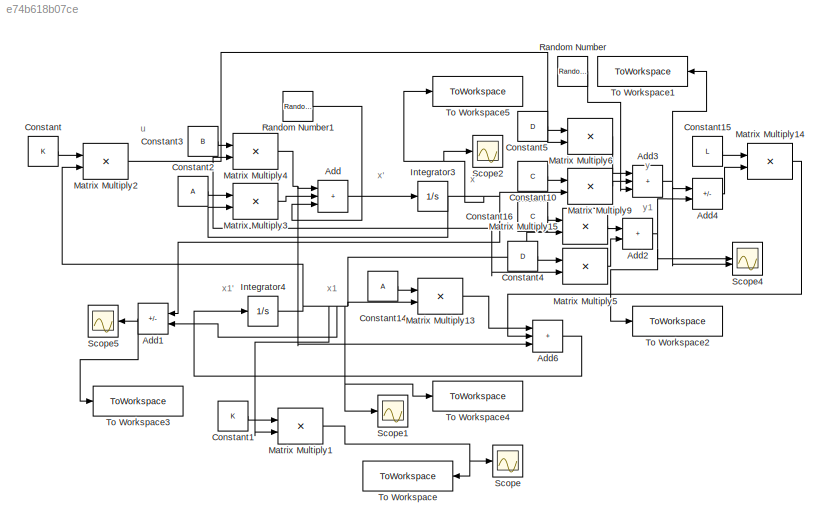
MODEL slx_e74b618b07ce
KIND model
CONFIG AbsTol = auto
CONFIG EnableMultiTasking = off
CONFIG FixedStep = 0.001
CONFIG MaxStep = auto
CONFIG MinStep = auto
CONFIG RelTol = 1e-3
CONFIG SampleTimeConstraint = Unconstrained
CONFIG SolverName = FixedStepAuto
CONFIG StartTime = 0.0
CONFIG StopTime = 10.0
BLOCK [Sum] Add
  IconShape = rectangular
  Inputs = +++
BLOCK [Sum] Add1
  IconShape = rectangular
  Inputs = +-
  NameLocation = top
BLOCK [Sum] Add2
  IconShape = rectangular
BLOCK [Sum] Add3
  IconShape = rectangular
  Inputs = +++
BLOCK [Sum] Add4
  IconShape = rectangular
  Inputs = -+
BLOCK [Sum] Add6
  IconShape = rectangular
  Inputs = +++
BLOCK [Constant] Constant
  Value = K
  VectorParams1D = off
BLOCK [Constant] Constant1
  Value = K
  VectorParams1D = off
BLOCK [Constant] Constant10
  Value = C
  VectorParams1D = off
BLOCK [Constant] Constant14
  Value = A
  VectorParams1D = off
BLOCK [Constant] Constant15
  Value = L
  VectorParams1D = off
BLOCK [Constant] Constant16
  Value = C
  VectorParams1D = off
BLOCK [Constant] Constant2
  Value = A
  VectorParams1D = off
BLOCK [Constant] Constant3
  Value = B
  VectorParams1D = off
BLOCK [Constant] Constant4
  Value = D
  VectorParams1D = off
BLOCK [Constant] Constant5
  Value = D
  VectorParams1D = off
BLOCK [Integrator] Integrator3
  InitialCondition = x0
BLOCK [Integrator] Integrator4
  InitialCondition = x1
BLOCK [Product] Matrix Multiply1
  Multiplication = Matrix(*)
BLOCK [Product] Matrix Multiply13
  Multiplication = Matrix(*)
BLOCK [Product] Matrix Multiply14
  Multiplication = Matrix(*)
BLOCK [Product] Matrix Multiply15
  Multiplication = Matrix(*)
BLOCK [Product] Matrix Multiply2
  Multiplication = Matrix(*)
BLOCK [Product] Matrix Multiply3
  Multiplication = Matrix(*)
BLOCK [Product] Matrix Multiply4
  Multiplication = Matrix(*)
BLOCK [Product] Matrix Multiply5
  Multiplication = Matrix(*)
BLOCK [Product] Matrix Multiply6
  Multiplication = Matrix(*)
BLOCK [Product] Matrix Multiply9
  Multiplication = Matrix(*)
BLOCK [RandomNumber] Random Number
  Mean = xi
  SampleTime = 0.1
BLOCK [RandomNumber] Random Number1
  Mean = fi
  SampleTime = 0.1
BLOCK [Scope] Scope
  Floating = off
  NumInputPorts = 1
  ScopeSpecificationString = Simulink.scopes.TimeScopeBlockCfg('CurrentConfiguration', extmgr.ConfigurationSet(extmgr.Configuration('Core','General UI',true),extmgr.Configuration('Core','Source UI',true),extmgr.Configuration('Sources','WiredSimulink',true,'DataLoggingVariableName','ScopeData1'),extmgr.Configuration('Visuals','Time Domain',true),extmgr.Configuration('Tools','Plot Navigation',true),extmgr.Configuration('Tools',...<+40ch>
BLOCK [Scope] Scope1
  Floating = off
  NumInputPorts = 1
  ScopeSpecificationString = Simulink.scopes.TimeScopeBlockCfg('CurrentConfiguration', extmgr.ConfigurationSet(extmgr.Configuration('Core','General UI',true),extmgr.Configuration('Core','Source UI',true),extmgr.Configuration('Sources','WiredSimulink',true,'DataLoggingVariableName','ScopeData2'),extmgr.Configuration('Visuals','Time Domain',true),extmgr.Configuration('Tools','Plot Navigation',true),extmgr.Configuration('Tools',...<+40ch>
BLOCK [Scope] Scope2
  Floating = off
  NumInputPorts = 1
  ScopeSpecificationString = Simulink.scopes.TimeScopeBlockCfg('CurrentConfiguration', extmgr.ConfigurationSet(extmgr.Configuration('Core','General UI',true),extmgr.Configuration('Core','Source UI',true),extmgr.Configuration('Sources','WiredSimulink',true,'DataLoggingVariableName','ScopeData3'),extmgr.Configuration('Visuals','Time Domain',true),extmgr.Configuration('Tools','Plot Navigation',true),extmgr.Configuration('Tools',...<+40ch>
BLOCK [Scope] Scope4
  Floating = off
  NumInputPorts = 2
  ScopeSpecificationString = Simulink.scopes.TimeScopeBlockCfg('CurrentConfiguration', extmgr.ConfigurationSet(extmgr.Configuration('Core','General UI',true),extmgr.Configuration('Core','Source UI',true),extmgr.Configuration('Sources','WiredSimulink',true,'DataLoggingVariableName','ScopeData5'),extmgr.Configuration('Visuals','Time Domain',true,'SerializedDisplays',{struct('MinYLimReal','-54.05485','MaxYLimReal','46.49361','YL...<+1398ch>
BLOCK [Scope] Scope5
  Floating = off
  NameLocation = top
  NumInputPorts = 1
  ScopeSpecificationString = Simulink.scopes.TimeScopeBlockCfg('CurrentConfiguration', extmgr.ConfigurationSet(extmgr.Configuration('Core','General UI',true),extmgr.Configuration('Core','Source UI',true),extmgr.Configuration('Sources','WiredSimulink',true),extmgr.Configuration('Visuals','Time Domain',true,'SerializedDisplays',{struct('MinYLimReal','-7.41862','MaxYLimReal','3.41958','YLabelReal','','MinYLimMag','0.00000','MaxY...<+1353ch>
BLOCK [ToWorkspace] To Workspace
  FixptAsFi = on
  MaxDataPoints = inf
  NameLocation = top
  SampleTime = -1
  SaveFormat = Timeseries
  VariableName = u
BLOCK [ToWorkspace] To Workspace1
  FixptAsFi = on
  MaxDataPoints = inf
  NameLocation = top
  SampleTime = -1
  SaveFormat = Timeseries
  VariableName = y
BLOCK [ToWorkspace] To Workspace2
  FixptAsFi = on
  MaxDataPoints = inf
  SampleTime = -1
  SaveFormat = Timeseries
  VariableName = yy
BLOCK [ToWorkspace] To Workspace3
  FixptAsFi = on
  MaxDataPoints = inf
  SampleTime = -1
  SaveFormat = Timeseries
  VariableName = e
BLOCK [ToWorkspace] To Workspace4
  FixptAsFi = on
  MaxDataPoints = inf
  SampleTime = -1
  SaveFormat = Timeseries
  VariableName = xx
BLOCK [ToWorkspace] To Workspace5
  FixptAsFi = on
  MaxDataPoints = inf
  SampleTime = -1
  SaveFormat = Timeseries
  VariableName = x
ANNOTATION (root): u
ANNOTATION (root): x
ANNOTATION (root): x'
ANNOTATION (root): x1
ANNOTATION (root): x1'
ANNOTATION (root): y
ANNOTATION (root): y1
NET Add1:1 -> Scope5:1, To Workspace3:1
NET Add2:1 -> Add4:2, Scope4:1, To Workspace2:1
NET Add3:1 -> Add4:1, Scope4:2, To Workspace1:1
LINE Add4:1 -> Matrix Multiply14:2
LINE Add6:1 -> Integrator4:1
LINE Add:1 -> Integrator3:1
LINE Constant10:1 -> Matrix Multiply9:1
LINE Constant14:1 -> Matrix Multiply13:1
LINE Constant15:1 -> Matrix Multiply14:1
LINE Constant16:1 -> Matrix Multiply15:1
LINE Constant1:1 -> Matrix Multiply1:1
LINE Constant2:1 -> Matrix Multiply3:1
LINE Constant3:1 -> Matrix Multiply4:1
LINE Constant4:1 -> Matrix Multiply5:1
LINE Constant5:1 -> Matrix Multiply6:1
LINE Constant:1 -> Matrix Multiply2:1
NET Integrator3:1 -> Add1:1, Matrix Multiply3:2, Matrix Multiply9:2, Scope2:1, To Workspace5:1
NET Integrator4:1 -> Add1:2, Matrix Multiply13:2, Matrix Multiply15:2, Matrix Multiply1:2, Matrix Multiply2:2, Scope1:1, To Workspace4:1
LINE Matrix Multiply13:1 -> Add6:1
LINE Matrix Multiply14:1 -> Add6:2
LINE Matrix Multiply15:1 -> Add2:1
NET Matrix Multiply1:1 -> Scope:1, To Workspace:1
NET Matrix Multiply2:1 -> Matrix Multiply4:2, Matrix Multiply5:2, Matrix Multiply6:2
LINE Matrix Multiply3:1 -> Add:2
NET Matrix Multiply4:1 -> Add6:3, Add:1
LINE Matrix Multiply5:1 -> Add2:2
LINE Matrix Multiply6:1 -> Add3:1
LINE Matrix Multiply9:1 -> Add3:2
LINE Random Number1:1 -> Add:3
LINE Random Number:1 -> Add3:3
note: NET lines group one-source signal fan-out (src -> all destinations, sorted); 1:1 wires keep LINE
